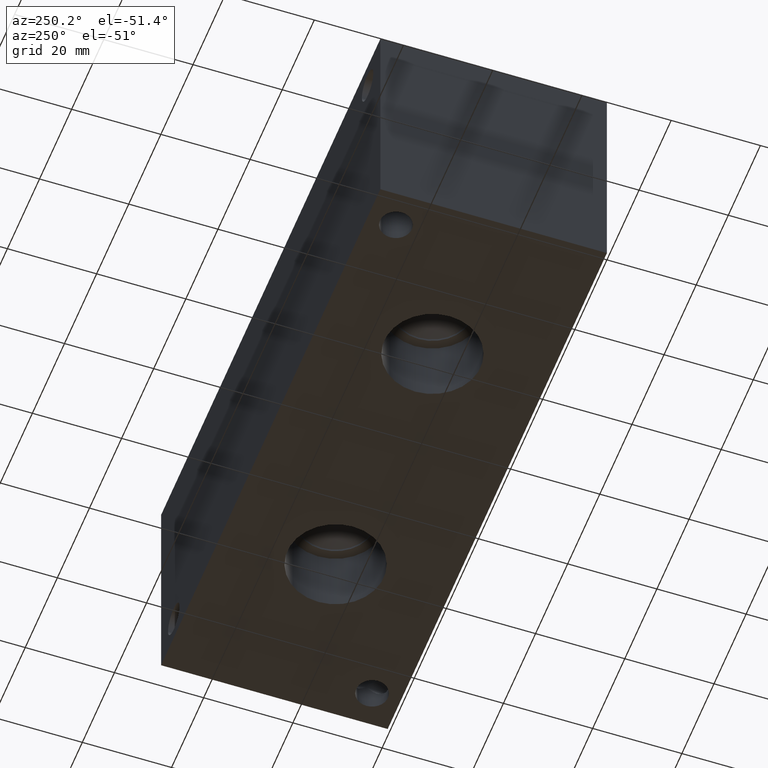
[diagram: clean part render]
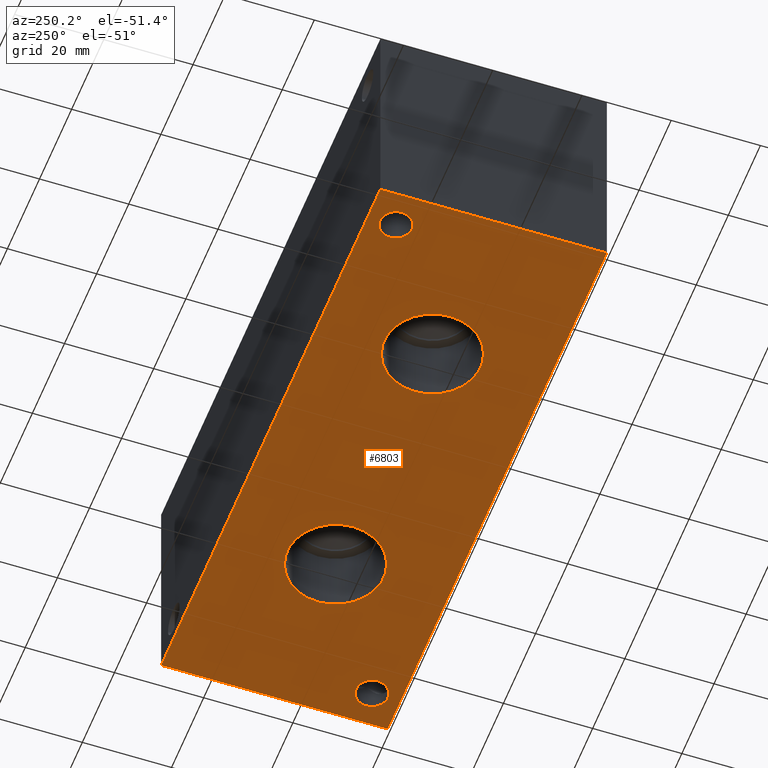
[diagram: same view with one face highlighted and labeled with its STEP entity id]
A machine part, auxiliary view. The second image highlights one B-rep face of the part: STEP entity #6803.
In plain terms, the highlighted planar face has unit normal (0, 0, 1).
Its self-contained STEP definition (entity closure, byte-faithful):
#60=CIRCLE('',#7032,10.795);
#61=CIRCLE('',#7033,10.795);
#67=CIRCLE('',#7044,10.795);
#68=CIRCLE('',#7045,10.795);
#90=CIRCLE('',#7090,3.5687);
#91=CIRCLE('',#7092,3.5687);
#152=FACE_BOUND('',#1099,.T.);
#153=FACE_BOUND('',#1100,.T.);
#154=FACE_BOUND('',#1101,.T.);
#155=FACE_BOUND('',#1102,.T.);
#372=PLANE('',#7128);
#713=FACE_OUTER_BOUND('',#1098,.T.);
#1098=EDGE_LOOP('',(#6060,#6061,#6062,#6063));
#1099=EDGE_LOOP('',(#6064,#6065));
#1100=EDGE_LOOP('',(#6066,#6067));
#1101=EDGE_LOOP('',(#6068));
#1102=EDGE_LOOP('',(#6069));
#1766=LINE('',#11584,#2437);
#1769=LINE('',#11589,#2440);
#1771=LINE('',#11593,#2442);
#1773=LINE('',#11596,#2444);
#2437=VECTOR('',#8406,10.);
#2440=VECTOR('',#8411,10.);
#2442=VECTOR('',#8415,10.);
#2444=VECTOR('',#8419,10.);
#3203=VERTEX_POINT('',#11402);
#3204=VERTEX_POINT('',#11403);
#3212=VERTEX_POINT('',#11427);
#3213=VERTEX_POINT('',#11428);
#3241=VERTEX_POINT('',#11514);
#3242=VERTEX_POINT('',#11518);
#3261=VERTEX_POINT('',#11582);
#3262=VERTEX_POINT('',#11583);
#3263=VERTEX_POINT('',#11588);
#3264=VERTEX_POINT('',#11592);
#4102=EDGE_CURVE('',#3203,#3204,#60,.T.);
#4103=EDGE_CURVE('',#3204,#3203,#61,.T.);
#4114=EDGE_CURVE('',#3212,#3213,#67,.T.);
#4115=EDGE_CURVE('',#3213,#3212,#68,.T.);
#4161=EDGE_CURVE('',#3241,#3241,#90,.T.);
#4163=EDGE_CURVE('',#3242,#3242,#91,.T.);
#4192=EDGE_CURVE('',#3261,#3262,#1766,.T.);
#4195=EDGE_CURVE('',#3263,#3261,#1769,.T.);
#4197=EDGE_CURVE('',#3264,#3263,#1771,.T.);
#4199=EDGE_CURVE('',#3262,#3264,#1773,.T.);
#6060=ORIENTED_EDGE('',*,*,#4199,.F.);
#6061=ORIENTED_EDGE('',*,*,#4192,.F.);
#6062=ORIENTED_EDGE('',*,*,#4195,.F.);
#6063=ORIENTED_EDGE('',*,*,#4197,.F.);
#6064=ORIENTED_EDGE('',*,*,#4102,.T.);
#6065=ORIENTED_EDGE('',*,*,#4103,.T.);
#6066=ORIENTED_EDGE('',*,*,#4114,.T.);
#6067=ORIENTED_EDGE('',*,*,#4115,.T.);
#6068=ORIENTED_EDGE('',*,*,#4161,.T.);
#6069=ORIENTED_EDGE('',*,*,#4163,.T.);
#6803=ADVANCED_FACE('',(#713,#152,#153,#154,#155),#372,.F.);
#7032=AXIS2_PLACEMENT_3D('',#11404,#8192,#8193);
#7033=AXIS2_PLACEMENT_3D('',#11405,#8194,#8195);
#7044=AXIS2_PLACEMENT_3D('',#11429,#8220,#8221);
#7045=AXIS2_PLACEMENT_3D('',#11430,#8222,#8223);
#7090=AXIS2_PLACEMENT_3D('',#11516,#8325,#8326);
#7092=AXIS2_PLACEMENT_3D('',#11520,#8330,#8331);
#7128=AXIS2_PLACEMENT_3D('',#11598,#8422,#8423);
#8192=DIRECTION('center_axis',(0.,0.,1.));
#8193=DIRECTION('ref_axis',(1.,0.,0.));
#8194=DIRECTION('center_axis',(0.,0.,1.));
#8195=DIRECTION('ref_axis',(1.,0.,0.));
#8220=DIRECTION('center_axis',(0.,0.,1.));
#8221=DIRECTION('ref_axis',(1.,0.,0.));
#8222=DIRECTION('center_axis',(0.,0.,1.));
#8223=DIRECTION('ref_axis',(1.,0.,0.));
#8325=DIRECTION('center_axis',(0.,0.,1.));
#8326=DIRECTION('ref_axis',(1.,0.,0.));
#8330=DIRECTION('center_axis',(0.,0.,1.));
#8331=DIRECTION('ref_axis',(1.,0.,0.));
#8406=DIRECTION('',(0.,-1.,0.));
#8411=DIRECTION('',(-1.,0.,0.));
#8415=DIRECTION('',(0.,1.,0.));
#8419=DIRECTION('',(1.,0.,0.));
#8422=DIRECTION('center_axis',(0.,0.,1.));
#8423=DIRECTION('ref_axis',(1.,0.,0.));
#11402=CARTESIAN_POINT('',(48.895,25.4,0.));
#11403=CARTESIAN_POINT('',(27.305,25.4,0.));
#11404=CARTESIAN_POINT('Origin',(38.1,25.4,0.));
#11405=CARTESIAN_POINT('Origin',(38.1,25.4,0.));
#11427=CARTESIAN_POINT('',(109.22,25.4,0.));
#11428=CARTESIAN_POINT('',(87.63,25.4,0.));
#11429=CARTESIAN_POINT('Origin',(98.425,25.4,0.));
#11430=CARTESIAN_POINT('Origin',(98.425,25.4,0.));
#11514=CARTESIAN_POINT('',(4.3561,44.45,0.));
#11516=CARTESIAN_POINT('Origin',(7.9248,44.45,0.));
#11518=CARTESIAN_POINT('',(125.0315,6.35,0.));
#11520=CARTESIAN_POINT('Origin',(128.6002,6.35,0.));
#11582=CARTESIAN_POINT('',(0.,50.8,0.));
#11583=CARTESIAN_POINT('',(0.,0.,0.));
#11584=CARTESIAN_POINT('',(0.,50.8,0.));
#11588=CARTESIAN_POINT('',(136.525,50.8,0.));
#11589=CARTESIAN_POINT('',(136.525,50.8,0.));
#11592=CARTESIAN_POINT('',(136.525,0.,0.));
#11593=CARTESIAN_POINT('',(136.525,0.,0.));
#11596=CARTESIAN_POINT('',(0.,0.,0.));
#11598=CARTESIAN_POINT('Origin',(68.2625,25.4,0.));